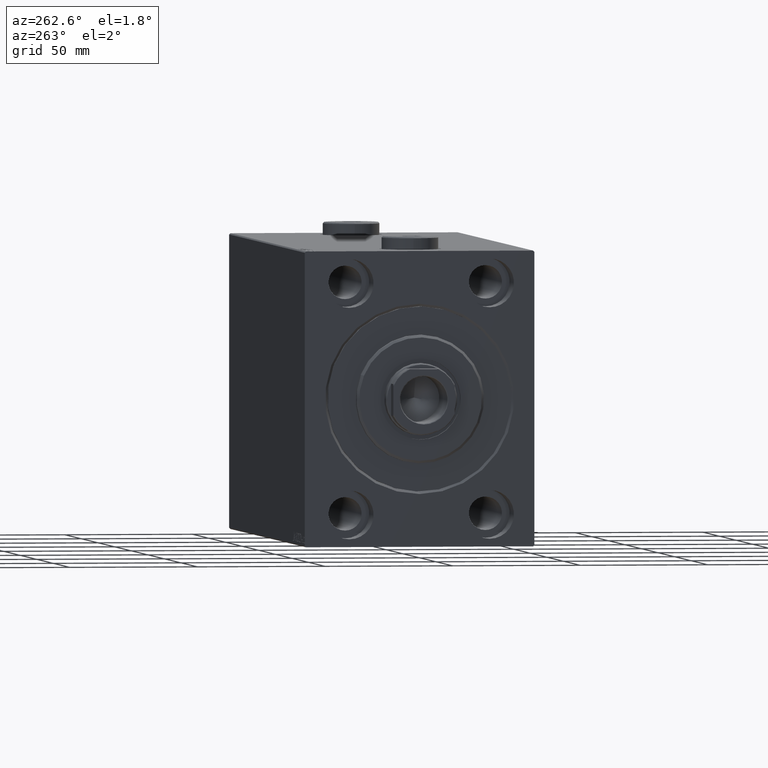
[diagram: clean part render]
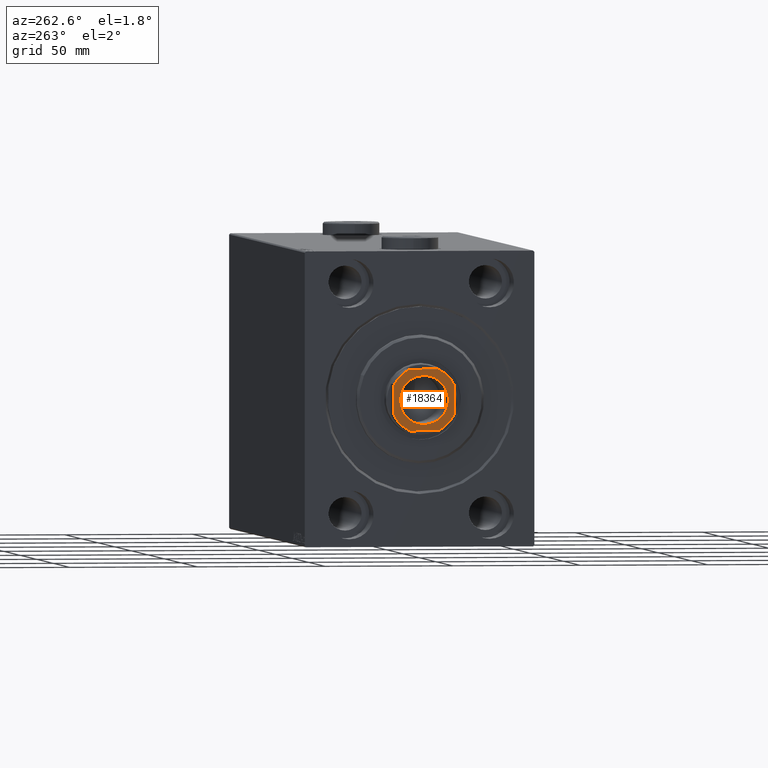
[diagram: same view with one face highlighted and labeled with its STEP entity id]
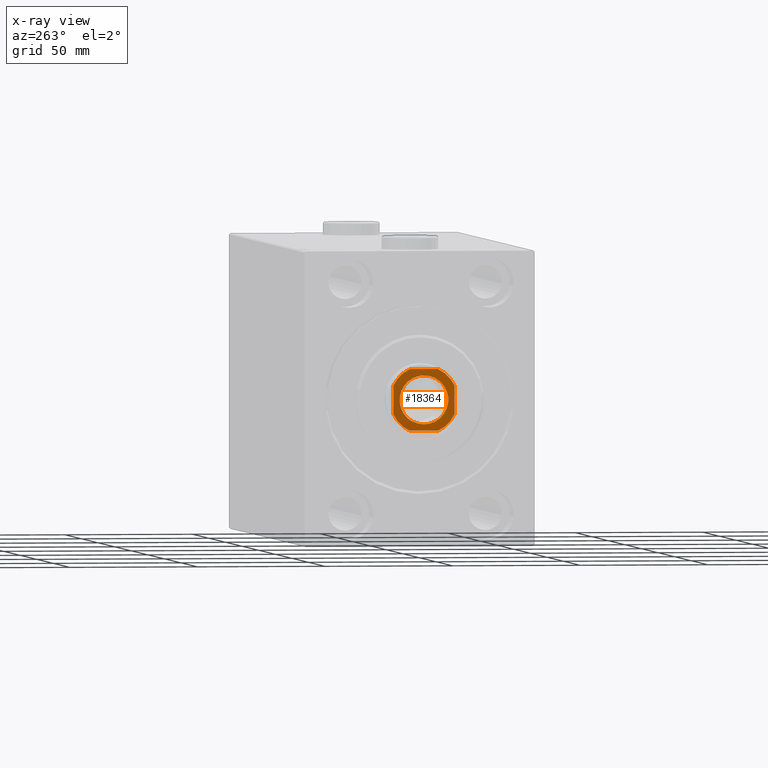
[diagram: x-ray of the same camera — body ghosted, the highlighted face saturated]
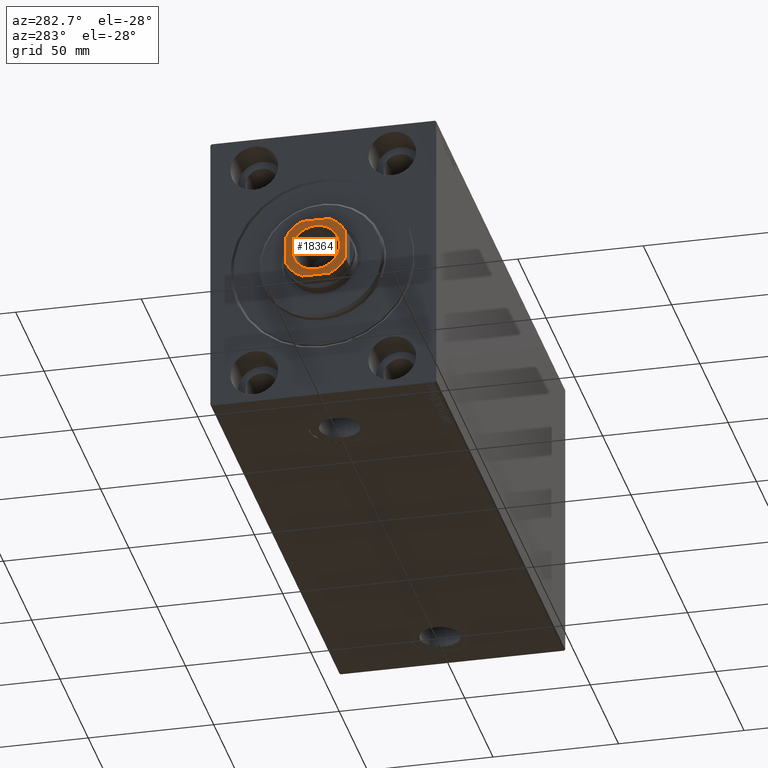
[diagram: same view with one face highlighted and labeled with its STEP entity id]
A machine part, auxiliary view. The second image highlights one B-rep face of the part: STEP entity #18364.
The next image is the same camera in x-ray: the body ghosted, the highlighted face saturated — about 0% of this face is hidden behind the body in this view.
A second angle (auxiliary view) of the same face is appended — the face is thin or edge-on in the first view.
In plain terms, the highlighted planar face has unit normal (-1, 0, 0).
Its self-contained STEP definition (entity closure, byte-faithful):
#319 = VECTOR ( 'NONE', #36321, 1000.000000000000000 ) ;
#1597 = CARTESIAN_POINT ( 'NONE',  ( 0.000000000000000000, 0.000000000000000000, 224.0000000000000284 ) ) ;
#3082 = CARTESIAN_POINT ( 'NONE',  ( -5.499090833947089862, 11.99999999999999645, 224.0000000000000284 ) ) ;
#3546 = AXIS2_PLACEMENT_3D ( 'NONE', #32533, #18103, #11009 ) ;
#4129 = DIRECTION ( 'NONE',  ( -2.168404344971008868E-16, 1.000000000000000000, -0.000000000000000000 ) ) ;
#4319 = CARTESIAN_POINT ( 'NONE',  ( -11.99999999999999822, -12.00000000000000355, 224.0000000000000284 ) ) ;
#5178 = VERTEX_POINT ( 'NONE', #36162 ) ;
#6022 = DIRECTION ( 'NONE',  ( 0.000000000000000000, -0.000000000000000000, -1.000000000000000000 ) ) ;
#6130 = DIRECTION ( 'NONE',  ( -0.000000000000000000, 0.000000000000000000, 1.000000000000000000 ) ) ;
#6631 = VECTOR ( 'NONE', #36688, 1000.000000000000000 ) ;
#7270 = DIRECTION ( 'NONE',  ( 1.000000000000000000, 0.000000000000000000, 0.000000000000000000 ) ) ;
#7828 = ORIENTED_EDGE ( 'NONE', *, *, #24060, .T. ) ;
#9766 = EDGE_CURVE ( 'NONE', #41960, #25754, #25402, .T. ) ;
#10025 = AXIS2_PLACEMENT_3D ( 'NONE', #29261, #32010, #43259 ) ;
#10722 = LINE ( 'NONE', #4319, #21397 ) ;
#10875 = AXIS2_PLACEMENT_3D ( 'NONE', #1597, #12134, #19676 ) ;
#11009 = DIRECTION ( 'NONE',  ( 1.000000000000000000, 0.000000000000000000, 0.000000000000000000 ) ) ;
#11013 = VERTEX_POINT ( 'NONE', #25347 ) ;
#11459 = FACE_BOUND ( 'NONE', #15004, .T. ) ;
#12134 = DIRECTION ( 'NONE',  ( -0.000000000000000000, 0.000000000000000000, 1.000000000000000000 ) ) ;
#13096 = ORIENTED_EDGE ( 'NONE', *, *, #9766, .T. ) ;
#13142 = CIRCLE ( 'NONE', #16806, 13.20000000000002949 ) ;
#14373 = AXIS2_PLACEMENT_3D ( 'NONE', #22537, #19325, #34584 ) ;
#14718 = VERTEX_POINT ( 'NONE', #38426 ) ;
#15004 = EDGE_LOOP ( 'NONE', ( #13096, #36130 ) ) ;
#15490 = EDGE_CURVE ( 'NONE', #5178, #40880, #40933, .T. ) ;
#16788 = DIRECTION ( 'NONE',  ( 1.000000000000000000, 0.000000000000000000, 0.000000000000000000 ) ) ;
#16806 = AXIS2_PLACEMENT_3D ( 'NONE', #23537, #6130, #34070 ) ;
#17335 = CIRCLE ( 'NONE', #43692, 13.19999999999998863 ) ;
#18015 = CIRCLE ( 'NONE', #14373, 13.20000000000003126 ) ;
#18103 = DIRECTION ( 'NONE',  ( -0.000000000000000000, 0.000000000000000000, 1.000000000000000000 ) ) ;
#18364 = ADVANCED_FACE ( 'NONE', ( #11459, #18561 ), #22449, .T. ) ;
#18561 = FACE_OUTER_BOUND ( 'NONE', #28383, .T. ) ;
#19041 = LINE ( 'NONE', #19262, #6631 ) ;
#19262 = CARTESIAN_POINT ( 'NONE',  ( -12.00000000000000355, 11.99999999999999645, 224.0000000000000284 ) ) ;
#19325 = DIRECTION ( 'NONE',  ( -0.000000000000000000, 0.000000000000000000, 1.000000000000000000 ) ) ;
#19393 = AXIS2_PLACEMENT_3D ( 'NONE', #30964, #6022, #16788 ) ;
#19676 = DIRECTION ( 'NONE',  ( 1.000000000000000000, 0.000000000000000000, 0.000000000000000000 ) ) ;
#19789 = CARTESIAN_POINT ( 'NONE',  ( 12.00000000000000000, -5.499090833946982393, 224.0000000000000284 ) ) ;
#19803 = LINE ( 'NONE', #22571, #319 ) ;
#20457 = VERTEX_POINT ( 'NONE', #26797 ) ;
#20686 = EDGE_CURVE ( 'NONE', #20457, #14718, #13142, .T. ) ;
#21325 = CARTESIAN_POINT ( 'NONE',  ( 5.499090833946973511, -12.00000000000000355, 224.0000000000000284 ) ) ;
#21397 = VECTOR ( 'NONE', #41899, 1000.000000000000000 ) ;
#22449 = PLANE ( 'NONE',  #3546 ) ;
#22537 = CARTESIAN_POINT ( 'NONE',  ( 0.000000000000000000, 0.000000000000000000, 224.0000000000000284 ) ) ;
#22571 = CARTESIAN_POINT ( 'NONE',  ( -12.00000000000000355, 11.99999999999999645, 224.0000000000000284 ) ) ;
#22995 = ORIENTED_EDGE ( 'NONE', *, *, #31092, .T. ) ;
#23537 = CARTESIAN_POINT ( 'NONE',  ( 0.000000000000000000, 0.000000000000000000, 224.0000000000000284 ) ) ;
#23943 = VERTEX_POINT ( 'NONE', #21325 ) ;
#24060 = EDGE_CURVE ( 'NONE', #40880, #41597, #19041, .T. ) ;
#25347 = CARTESIAN_POINT ( 'NONE',  ( -12.00000000000000178, 5.499090833947080093, 224.0000000000000284 ) ) ;
#25402 = CIRCLE ( 'NONE', #10025, 9.549999999999975842 ) ;
#25435 = LINE ( 'NONE', #28405, #43795 ) ;
#25754 = VERTEX_POINT ( 'NONE', #38797 ) ;
#26258 = EDGE_CURVE ( 'NONE', #14718, #23943, #10722, .T. ) ;
#26797 = CARTESIAN_POINT ( 'NONE',  ( -12.00000000000000000, -5.499090833947075652, 224.0000000000000284 ) ) ;
#26865 = ORIENTED_EDGE ( 'NONE', *, *, #15490, .T. ) ;
#27058 = DIRECTION ( 'NONE',  ( -0.000000000000000000, 0.000000000000000000, 1.000000000000000000 ) ) ;
#28325 = CARTESIAN_POINT ( 'NONE',  ( 0.000000000000000000, 0.000000000000000000, 224.0000000000000284 ) ) ;
#28383 = EDGE_LOOP ( 'NONE', ( #34142, #26865, #7828, #30069, #22995, #29608, #39814, #37826 ) ) ;
#28405 = CARTESIAN_POINT ( 'NONE',  ( 11.99999999999999645, 11.99999999999999645, 224.0000000000000284 ) ) ;
#29261 = CARTESIAN_POINT ( 'NONE',  ( 0.000000000000000000, 0.000000000000000000, 224.0000000000000284 ) ) ;
#29608 = ORIENTED_EDGE ( 'NONE', *, *, #20686, .T. ) ;
#30069 = ORIENTED_EDGE ( 'NONE', *, *, #35970, .T. ) ;
#30964 = CARTESIAN_POINT ( 'NONE',  ( 0.000000000000000000, 0.000000000000000000, 224.0000000000000284 ) ) ;
#31092 = EDGE_CURVE ( 'NONE', #11013, #20457, #19803, .T. ) ;
#32010 = DIRECTION ( 'NONE',  ( 0.000000000000000000, -0.000000000000000000, -1.000000000000000000 ) ) ;
#32276 = EDGE_CURVE ( 'NONE', #25754, #41960, #42092, .T. ) ;
#32533 = CARTESIAN_POINT ( 'NONE',  ( 0.000000000000000000, 0.000000000000000000, 224.0000000000000284 ) ) ;
#34070 = DIRECTION ( 'NONE',  ( 1.000000000000000000, 0.000000000000000000, 0.000000000000000000 ) ) ;
#34142 = ORIENTED_EDGE ( 'NONE', *, *, #39691, .T. ) ;
#34584 = DIRECTION ( 'NONE',  ( 1.000000000000000000, 0.000000000000000000, 0.000000000000000000 ) ) ;
#35970 = EDGE_CURVE ( 'NONE', #41597, #11013, #18015, .T. ) ;
#36130 = ORIENTED_EDGE ( 'NONE', *, *, #32276, .T. ) ;
#36162 = CARTESIAN_POINT ( 'NONE',  ( 11.99999999999999645, 5.499090833946986834, 224.0000000000000284 ) ) ;
#36321 = DIRECTION ( 'NONE',  ( 2.168404344971008868E-16, -1.000000000000000000, 0.000000000000000000 ) ) ;
#36688 = DIRECTION ( 'NONE',  ( -1.000000000000000000, -0.000000000000000000, -0.000000000000000000 ) ) ;
#37772 = EDGE_CURVE ( 'NONE', #23943, #38325, #17335, .T. ) ;
#37826 = ORIENTED_EDGE ( 'NONE', *, *, #37772, .T. ) ;
#38325 = VERTEX_POINT ( 'NONE', #19789 ) ;
#38426 = CARTESIAN_POINT ( 'NONE',  ( -5.499090833947070323, -12.00000000000000355, 224.0000000000000284 ) ) ;
#38797 = CARTESIAN_POINT ( 'NONE',  ( -9.549999999999975842, 1.169537693185719205E-15, 224.0000000000000284 ) ) ;
#39453 = CARTESIAN_POINT ( 'NONE',  ( 9.549999999999975842, 0.000000000000000000, 224.0000000000000284 ) ) ;
#39691 = EDGE_CURVE ( 'NONE', #38325, #5178, #25435, .T. ) ;
#39814 = ORIENTED_EDGE ( 'NONE', *, *, #26258, .T. ) ;
#39996 = CARTESIAN_POINT ( 'NONE',  ( 5.499090833946989498, 11.99999999999999645, 224.0000000000000284 ) ) ;
#40880 = VERTEX_POINT ( 'NONE', #39996 ) ;
#40933 = CIRCLE ( 'NONE', #10875, 13.19999999999998863 ) ;
#41597 = VERTEX_POINT ( 'NONE', #3082 ) ;
#41899 = DIRECTION ( 'NONE',  ( 1.000000000000000000, 0.000000000000000000, 0.000000000000000000 ) ) ;
#41960 = VERTEX_POINT ( 'NONE', #39453 ) ;
#42092 = CIRCLE ( 'NONE', #19393, 9.549999999999975842 ) ;
#43259 = DIRECTION ( 'NONE',  ( 1.000000000000000000, 0.000000000000000000, 0.000000000000000000 ) ) ;
#43692 = AXIS2_PLACEMENT_3D ( 'NONE', #28325, #27058, #7270 ) ;
#43795 = VECTOR ( 'NONE', #4129, 1000.000000000000000 ) ;